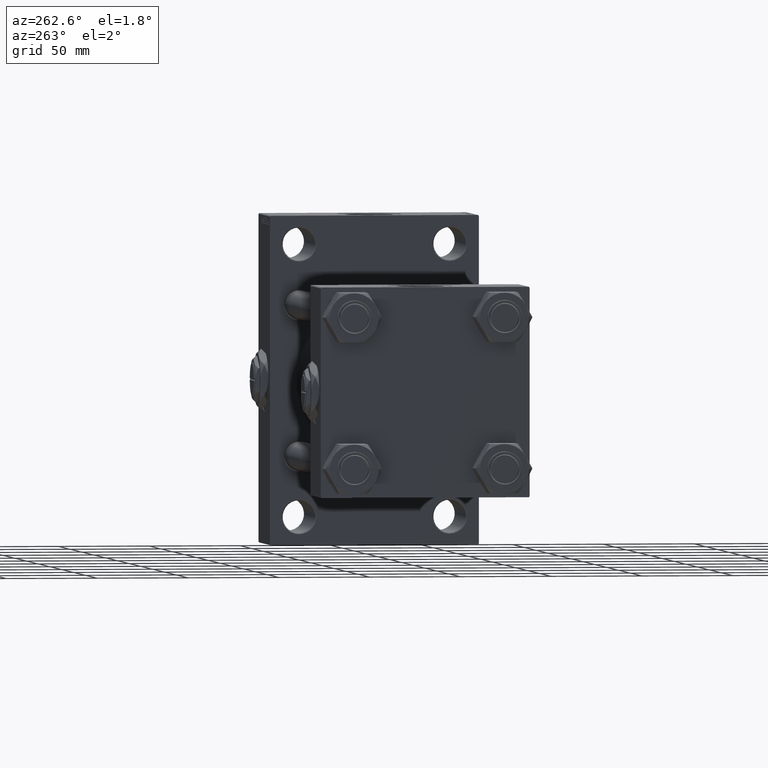
[diagram: clean part render]
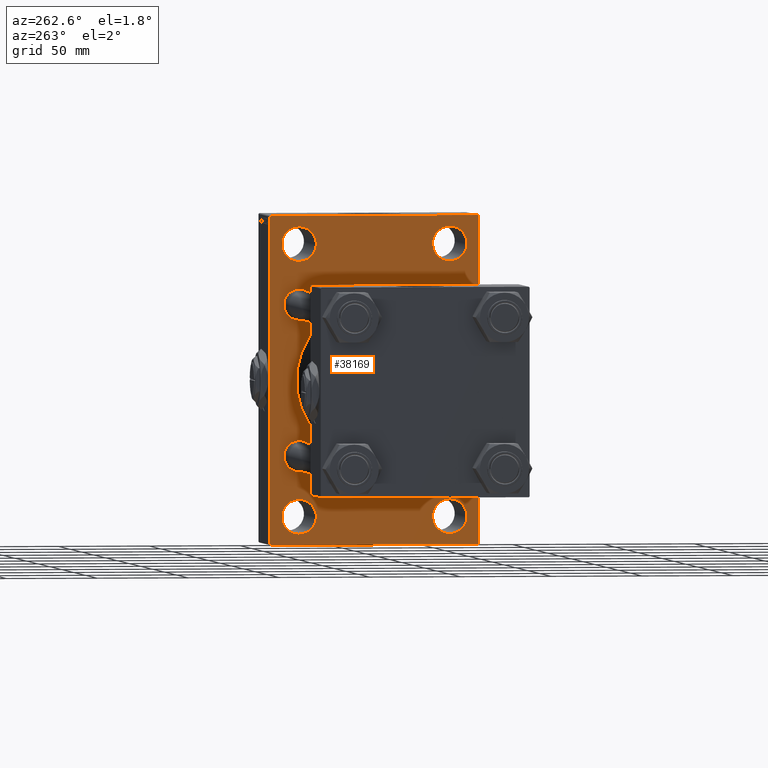
[diagram: same view with one face highlighted and labeled with its STEP entity id]
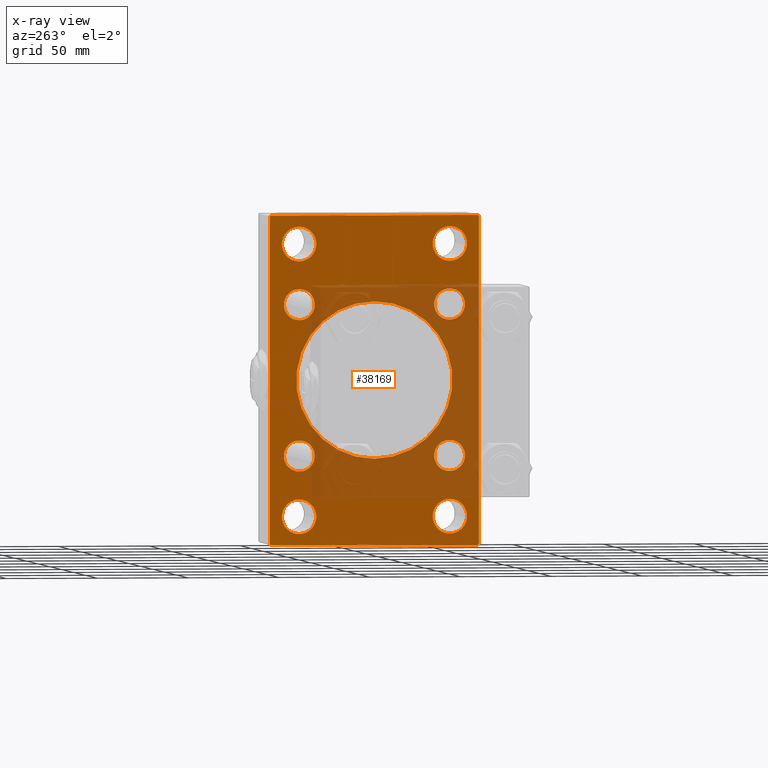
[diagram: x-ray of the same camera — body ghosted, the highlighted face saturated]
A machine part, auxiliary view. The second image highlights one B-rep face of the part: STEP entity #38169.
The next image is the same camera in x-ray: the body ghosted, the highlighted face saturated — about 37% of this face is hidden behind the body in this view.
In plain terms, the highlighted planar face has unit normal (-1, 0, 0).
Its self-contained STEP definition (entity closure, byte-faithful):
#252 = EDGE_CURVE ( 'NONE', #344, #13817, #27634, .T. ) ;
#344 = VERTEX_POINT ( 'NONE', #37835 ) ;
#804 = DIRECTION ( 'NONE',  ( 0.000000000000000000, 0.000000000000000000, 1.000000000000000000 ) ) ;
#981 = DIRECTION ( 'NONE',  ( 0.000000000000000000, -1.000000000000000000, -1.206764157201257045E-16 ) ) ;
#1043 = FACE_BOUND ( 'NONE', #28499, .T. ) ;
#1195 = ORIENTED_EDGE ( 'NONE', *, *, #24516, .T. ) ;
#1393 = AXIS2_PLACEMENT_3D ( 'NONE', #35901, #47982, #43218 ) ;
#1520 = EDGE_CURVE ( 'NONE', #24463, #35266, #39720, .T. ) ;
#1678 = EDGE_CURVE ( 'NONE', #34278, #28096, #45360, .T. ) ;
#1801 = VERTEX_POINT ( 'NONE', #38645 ) ;
#2208 = CIRCLE ( 'NONE', #1393, 9.499999999999980460 ) ;
#2738 = EDGE_LOOP ( 'NONE', ( #7486, #29681 ) ) ;
#2803 = AXIS2_PLACEMENT_3D ( 'NONE', #28324, #46966, #47465 ) ;
#3040 = VERTEX_POINT ( 'NONE', #5344 ) ;
#3608 = AXIS2_PLACEMENT_3D ( 'NONE', #35010, #46347, #11858 ) ;
#3806 = CIRCLE ( 'NONE', #35971, 8.500000000000007105 ) ;
#3875 = CIRCLE ( 'NONE', #19935, 9.499999999999980460 ) ;
#3904 = CARTESIAN_POINT ( 'NONE',  ( 215.0000000000000284, -41.49999999999999289, 83.99999999999998579 ) ) ;
#3926 = VERTEX_POINT ( 'NONE', #28172 ) ;
#4108 = ORIENTED_EDGE ( 'NONE', *, *, #46200, .T. ) ;
#4416 = VECTOR ( 'NONE', #29407, 1000.000000000000000 ) ;
#4475 = AXIS2_PLACEMENT_3D ( 'NONE', #37730, #33466, #22620 ) ;
#4561 = AXIS2_PLACEMENT_3D ( 'NONE', #15664, #49686, #804 ) ;
#4771 = LINE ( 'NONE', #5009, #18200 ) ;
#4974 = CARTESIAN_POINT ( 'NONE',  ( 215.0000000000000284, 73.49999999999994316, 73.49999999999994316 ) ) ;
#5009 = CARTESIAN_POINT ( 'NONE',  ( 215.0000000000000284, 57.49999999999997868, -90.00000000000000000 ) ) ;
#5176 = VERTEX_POINT ( 'NONE', #45951 ) ;
#5344 = CARTESIAN_POINT ( 'NONE',  ( 215.0000000000000284, 56.99999999999997868, -90.00000000000000000 ) ) ;
#5455 = CARTESIAN_POINT ( 'NONE',  ( 215.0000000000000284, 41.50000000000000711, 74.50000000000001421 ) ) ;
#6467 = CARTESIAN_POINT ( 'NONE',  ( 215.0000000000000284, 57.49999999999997158, 89.99999999999998579 ) ) ;
#7184 = DIRECTION ( 'NONE',  ( 0.000000000000000000, 0.000000000000000000, 1.000000000000000000 ) ) ;
#7486 = ORIENTED_EDGE ( 'NONE', *, *, #27283, .T. ) ;
#8182 = DIRECTION ( 'NONE',  ( 0.000000000000000000, 0.000000000000000000, 1.000000000000000000 ) ) ;
#8187 = DIRECTION ( 'NONE',  ( 1.000000000000000000, -0.000000000000000000, 0.000000000000000000 ) ) ;
#8198 = EDGE_CURVE ( 'NONE', #28650, #30996, #28591, .T. ) ;
#8362 = FACE_BOUND ( 'NONE', #29411, .T. ) ;
#8535 = AXIS2_PLACEMENT_3D ( 'NONE', #43696, #9208, #12492 ) ;
#8661 = CARTESIAN_POINT ( 'NONE',  ( 215.0000000000000284, 41.34999999999999432, -41.35000000000000142 ) ) ;
#8765 = DIRECTION ( 'NONE',  ( 0.000000000000000000, 0.7071067811865474617, -0.7071067811865474617 ) ) ;
#9205 = CARTESIAN_POINT ( 'NONE',  ( 215.0000000000000284, -57.50000000000002132, 89.49999999999997158 ) ) ;
#9208 = DIRECTION ( 'NONE',  ( 1.000000000000000000, -0.000000000000000000, 0.000000000000000000 ) ) ;
#9258 = ORIENTED_EDGE ( 'NONE', *, *, #34669, .T. ) ;
#9299 = VERTEX_POINT ( 'NONE', #37678 ) ;
#9437 = ORIENTED_EDGE ( 'NONE', *, *, #28914, .F. ) ;
#9520 = EDGE_CURVE ( 'NONE', #33704, #22041, #24632, .T. ) ;
#9899 = AXIS2_PLACEMENT_3D ( 'NONE', #38657, #8187, #34890 ) ;
#10342 = CARTESIAN_POINT ( 'NONE',  ( 215.0000000000000284, -41.49999999999999289, -83.99999999999995737 ) ) ;
#10472 = DIRECTION ( 'NONE',  ( 1.000000000000000000, -0.000000000000000000, 0.000000000000000000 ) ) ;
#10528 = LINE ( 'NONE', #14034, #4416 ) ;
#10617 = ORIENTED_EDGE ( 'NONE', *, *, #34603, .T. ) ;
#10811 = DIRECTION ( 'NONE',  ( 1.000000000000000000, -0.000000000000000000, 0.000000000000000000 ) ) ;
#11223 = CARTESIAN_POINT ( 'NONE',  ( 215.0000000000000284, -2.602085213965210642E-15, 0.000000000000000000 ) ) ;
#11521 = CARTESIAN_POINT ( 'NONE',  ( 215.0000000000000284, 41.34999999999999432, -32.84999999999999432 ) ) ;
#11560 = AXIS2_PLACEMENT_3D ( 'NONE', #42686, #12466, #8182 ) ;
#11655 = VECTOR ( 'NONE', #45744, 1000.000000000000000 ) ;
#11681 = VERTEX_POINT ( 'NONE', #11965 ) ;
#11695 = EDGE_CURVE ( 'NONE', #9299, #47585, #31149, .T. ) ;
#11852 = DIRECTION ( 'NONE',  ( 0.000000000000000000, 0.000000000000000000, 1.000000000000000000 ) ) ;
#11858 = DIRECTION ( 'NONE',  ( 0.000000000000000000, 0.000000000000000000, -1.000000000000000000 ) ) ;
#11914 = EDGE_LOOP ( 'NONE', ( #42057, #37471 ) ) ;
#11929 = EDGE_CURVE ( 'NONE', #35438, #48436, #12635, .T. ) ;
#11965 = CARTESIAN_POINT ( 'NONE',  ( 215.0000000000000284, 57.49999999999997868, -89.49999999999995737 ) ) ;
#12102 = VECTOR ( 'NONE', #13013, 999.9999999999998863 ) ;
#12376 = DIRECTION ( 'NONE',  ( 1.000000000000000000, -0.000000000000000000, 0.000000000000000000 ) ) ;
#12429 = DIRECTION ( 'NONE',  ( 1.000000000000000000, -0.000000000000000000, 0.000000000000000000 ) ) ;
#12466 = DIRECTION ( 'NONE',  ( 1.000000000000000000, -0.000000000000000000, 0.000000000000000000 ) ) ;
#12490 = CIRCLE ( 'NONE', #3608, 43.00000000000000000 ) ;
#12492 = DIRECTION ( 'NONE',  ( 0.000000000000000000, 0.000000000000000000, 1.000000000000000000 ) ) ;
#12541 = DIRECTION ( 'NONE',  ( 0.000000000000000000, 0.000000000000000000, 1.000000000000000000 ) ) ;
#12635 = CIRCLE ( 'NONE', #48820, 8.500000000000007105 ) ;
#12830 = CARTESIAN_POINT ( 'NONE',  ( 215.0000000000000284, -41.34999999999998721, -49.85000000000002274 ) ) ;
#12895 = ORIENTED_EDGE ( 'NONE', *, *, #40092, .T. ) ;
#12958 = VERTEX_POINT ( 'NONE', #25922 ) ;
#13013 = DIRECTION ( 'NONE',  ( -0.000000000000000000, 0.7071067811865525687, 0.7071067811865425767 ) ) ;
#13267 = AXIS2_PLACEMENT_3D ( 'NONE', #14199, #29567, #15932 ) ;
#13758 = EDGE_CURVE ( 'NONE', #12958, #1801, #45451, .T. ) ;
#13817 = VERTEX_POINT ( 'NONE', #3904 ) ;
#14034 = CARTESIAN_POINT ( 'NONE',  ( 215.0000000000000284, 57.49999999999997158, 89.99999999999998579 ) ) ;
#14199 = CARTESIAN_POINT ( 'NONE',  ( 215.0000000000000284, -41.49999999999999289, -74.49999999999998579 ) ) ;
#14279 = DIRECTION ( 'NONE',  ( 1.000000000000000000, -0.000000000000000000, 0.000000000000000000 ) ) ;
#14314 = VECTOR ( 'NONE', #8765, 1000.000000000000114 ) ;
#14751 = AXIS2_PLACEMENT_3D ( 'NONE', #33505, #29966, #11852 ) ;
#14757 = CARTESIAN_POINT ( 'NONE',  ( 215.0000000000000284, -57.50000000000002132, 89.99999999999997158 ) ) ;
#14944 = CARTESIAN_POINT ( 'NONE',  ( 215.0000000000000284, -41.34999999999998721, 32.85000000000000142 ) ) ;
#14977 = CIRCLE ( 'NONE', #4561, 8.500000000000007105 ) ;
#15045 = DIRECTION ( 'NONE',  ( 0.000000000000000000, 0.000000000000000000, 1.000000000000000000 ) ) ;
#15259 = ORIENTED_EDGE ( 'NONE', *, *, #13758, .T. ) ;
#15664 = CARTESIAN_POINT ( 'NONE',  ( 215.0000000000000284, -41.34999999999998721, -41.35000000000000853 ) ) ;
#15932 = DIRECTION ( 'NONE',  ( 0.000000000000000000, 0.000000000000000000, 1.000000000000000000 ) ) ;
#16180 = CARTESIAN_POINT ( 'NONE',  ( 215.0000000000000284, 41.50000000000000711, -65.00000000000001421 ) ) ;
#16186 = DIRECTION ( 'NONE',  ( 0.000000000000000000, 0.000000000000000000, 1.000000000000000000 ) ) ;
#17103 = CIRCLE ( 'NONE', #9899, 9.499999999999980460 ) ;
#17104 = CARTESIAN_POINT ( 'NONE',  ( 215.0000000000000284, 41.34999999999999432, 49.85000000000001563 ) ) ;
#17788 = LINE ( 'NONE', #6467, #33523 ) ;
#17992 = CARTESIAN_POINT ( 'NONE',  ( 215.0000000000000284, -73.49999999999924682, -73.50000000000129319 ) ) ;
#18081 = ORIENTED_EDGE ( 'NONE', *, *, #11929, .T. ) ;
#18114 = CIRCLE ( 'NONE', #4475, 9.499999999999980460 ) ;
#18200 = VECTOR ( 'NONE', #981, 1000.000000000000000 ) ;
#18780 = VERTEX_POINT ( 'NONE', #16180 ) ;
#18880 = ORIENTED_EDGE ( 'NONE', *, *, #39821, .T. ) ;
#19196 = FACE_BOUND ( 'NONE', #2738, .T. ) ;
#19459 = ORIENTED_EDGE ( 'NONE', *, *, #22874, .F. ) ;
#19583 = CARTESIAN_POINT ( 'NONE',  ( 215.0000000000000284, -41.49999999999999289, 74.50000000000001421 ) ) ;
#19886 = AXIS2_PLACEMENT_3D ( 'NONE', #11223, #42436, #45453 ) ;
#19935 = AXIS2_PLACEMENT_3D ( 'NONE', #19583, #20089, #12541 ) ;
#19942 = FACE_BOUND ( 'NONE', #31188, .T. ) ;
#20089 = DIRECTION ( 'NONE',  ( 1.000000000000000000, -0.000000000000000000, 0.000000000000000000 ) ) ;
#20178 = DIRECTION ( 'NONE',  ( -0.000000000000000000, 0.000000000000000000, 1.000000000000000000 ) ) ;
#20986 = EDGE_LOOP ( 'NONE', ( #10617, #25725 ) ) ;
#21564 = EDGE_CURVE ( 'NONE', #44948, #3926, #39703, .T. ) ;
#21807 = LINE ( 'NONE', #14757, #11655 ) ;
#21817 = DIRECTION ( 'NONE',  ( 0.000000000000000000, 0.000000000000000000, 1.000000000000000000 ) ) ;
#22041 = VERTEX_POINT ( 'NONE', #35443 ) ;
#22114 = VECTOR ( 'NONE', #29528, 1000.000000000000000 ) ;
#22323 = DIRECTION ( 'NONE',  ( 0.000000000000000000, -1.000000000000000000, -1.206764157201257291E-16 ) ) ;
#22452 = CARTESIAN_POINT ( 'NONE',  ( 215.0000000000000284, 73.49999999999920419, -73.50000000000125056 ) ) ;
#22620 = DIRECTION ( 'NONE',  ( 0.000000000000000000, 0.000000000000000000, 1.000000000000000000 ) ) ;
#22759 = CARTESIAN_POINT ( 'NONE',  ( 215.0000000000000284, 56.99999999999992184, 89.99999999999998579 ) ) ;
#22874 = EDGE_CURVE ( 'NONE', #46720, #1801, #21807, .T. ) ;
#23223 = FACE_BOUND ( 'NONE', #49183, .T. ) ;
#23656 = AXIS2_PLACEMENT_3D ( 'NONE', #5455, #10472, #7184 ) ;
#23713 = PLANE ( 'NONE',  #35399 ) ;
#23776 = CARTESIAN_POINT ( 'NONE',  ( 215.0000000000000284, 41.50000000000000711, -83.99999999999997158 ) ) ;
#24074 = EDGE_CURVE ( 'NONE', #11681, #3040, #48914, .T. ) ;
#24463 = VERTEX_POINT ( 'NONE', #33425 ) ;
#24516 = EDGE_CURVE ( 'NONE', #5176, #11681, #10528, .T. ) ;
#24528 = CIRCLE ( 'NONE', #2803, 9.499999999999980460 ) ;
#24632 = CIRCLE ( 'NONE', #8535, 8.500000000000007105 ) ;
#24882 = CARTESIAN_POINT ( 'NONE',  ( 215.0000000000000284, -57.00000000000001421, 89.99999999999997158 ) ) ;
#25725 = ORIENTED_EDGE ( 'NONE', *, *, #252, .T. ) ;
#25922 = CARTESIAN_POINT ( 'NONE',  ( 215.0000000000000284, -57.00000000000007816, -90.00000000000001421 ) ) ;
#26493 = CARTESIAN_POINT ( 'NONE',  ( 215.0000000000000284, -41.49999999999999289, -65.00000000000000000 ) ) ;
#27283 = EDGE_CURVE ( 'NONE', #3926, #44948, #14977, .T. ) ;
#27634 = CIRCLE ( 'NONE', #11560, 9.499999999999980460 ) ;
#27904 = LINE ( 'NONE', #32160, #12102 ) ;
#28096 = VERTEX_POINT ( 'NONE', #39127 ) ;
#28172 = CARTESIAN_POINT ( 'NONE',  ( 215.0000000000000284, -41.34999999999998721, -32.85000000000000142 ) ) ;
#28324 = CARTESIAN_POINT ( 'NONE',  ( 215.0000000000000284, 41.50000000000000711, -74.50000000000000000 ) ) ;
#28499 = EDGE_LOOP ( 'NONE', ( #49346, #12895 ) ) ;
#28591 = CIRCLE ( 'NONE', #13267, 9.499999999999980460 ) ;
#28650 = VERTEX_POINT ( 'NONE', #26493 ) ;
#28914 = EDGE_CURVE ( 'NONE', #29449, #42736, #17788, .T. ) ;
#29200 = EDGE_CURVE ( 'NONE', #28096, #34278, #2208, .T. ) ;
#29407 = DIRECTION ( 'NONE',  ( 0.000000000000000000, 3.854941057726238467E-17, -1.000000000000000000 ) ) ;
#29411 = EDGE_LOOP ( 'NONE', ( #35875, #4108 ) ) ;
#29449 = VERTEX_POINT ( 'NONE', #22759 ) ;
#29528 = DIRECTION ( 'NONE',  ( -0.000000000000000000, -0.7071067811865573427, -0.7071067811865378028 ) ) ;
#29567 = DIRECTION ( 'NONE',  ( 1.000000000000000000, -0.000000000000000000, 0.000000000000000000 ) ) ;
#29681 = ORIENTED_EDGE ( 'NONE', *, *, #21564, .T. ) ;
#29913 = EDGE_CURVE ( 'NONE', #22041, #33704, #40766, .T. ) ;
#29966 = DIRECTION ( 'NONE',  ( 1.000000000000000000, -0.000000000000000000, 0.000000000000000000 ) ) ;
#30193 = CARTESIAN_POINT ( 'NONE',  ( 215.0000000000000284, -41.34999999999998721, 41.35000000000000853 ) ) ;
#30780 = FACE_BOUND ( 'NONE', #43141, .T. ) ;
#30996 = VERTEX_POINT ( 'NONE', #10342 ) ;
#31036 = EDGE_CURVE ( 'NONE', #3040, #12958, #4771, .T. ) ;
#31149 = CIRCLE ( 'NONE', #19886, 43.00000000000000000 ) ;
#31188 = EDGE_LOOP ( 'NONE', ( #47149, #40747 ) ) ;
#31285 = FACE_BOUND ( 'NONE', #11914, .T. ) ;
#31512 = DIRECTION ( 'NONE',  ( 0.000000000000000000, 0.000000000000000000, 1.000000000000000000 ) ) ;
#31677 = LINE ( 'NONE', #4974, #14314 ) ;
#32160 = CARTESIAN_POINT ( 'NONE',  ( 215.0000000000000284, -73.49999999999958789, 73.50000000000062528 ) ) ;
#32929 = EDGE_CURVE ( 'NONE', #35266, #24463, #3806, .T. ) ;
#33425 = CARTESIAN_POINT ( 'NONE',  ( 215.0000000000000284, -41.34999999999998721, 49.85000000000002274 ) ) ;
#33466 = DIRECTION ( 'NONE',  ( 1.000000000000000000, -0.000000000000000000, 0.000000000000000000 ) ) ;
#33505 = CARTESIAN_POINT ( 'NONE',  ( 215.0000000000000284, -41.34999999999998721, -41.35000000000000853 ) ) ;
#33523 = VECTOR ( 'NONE', #22323, 1000.000000000000000 ) ;
#33667 = CARTESIAN_POINT ( 'NONE',  ( 215.0000000000000284, 41.34999999999999432, -41.35000000000000142 ) ) ;
#33704 = VERTEX_POINT ( 'NONE', #17104 ) ;
#34180 = DIRECTION ( 'NONE',  ( 1.000000000000000000, -0.000000000000000000, 0.000000000000000000 ) ) ;
#34260 = ORIENTED_EDGE ( 'NONE', *, *, #24074, .T. ) ;
#34278 = VERTEX_POINT ( 'NONE', #38541 ) ;
#34570 = DIRECTION ( 'NONE',  ( -1.000000000000000000, 0.000000000000000000, -0.000000000000000000 ) ) ;
#34603 = EDGE_CURVE ( 'NONE', #13817, #344, #3875, .T. ) ;
#34669 = EDGE_CURVE ( 'NONE', #29449, #5176, #31677, .T. ) ;
#34890 = DIRECTION ( 'NONE',  ( 0.000000000000000000, 0.000000000000000000, 1.000000000000000000 ) ) ;
#35011 = ORIENTED_EDGE ( 'NONE', *, *, #32929, .T. ) ;
#35010 = CARTESIAN_POINT ( 'NONE',  ( 215.0000000000000284, -2.602085213965210642E-15, 0.000000000000000000 ) ) ;
#35266 = VERTEX_POINT ( 'NONE', #14944 ) ;
#35306 = FACE_OUTER_BOUND ( 'NONE', #37725, .T. ) ;
#35399 = AXIS2_PLACEMENT_3D ( 'NONE', #39074, #34570, #20178 ) ;
#35438 = VERTEX_POINT ( 'NONE', #44546 ) ;
#35443 = CARTESIAN_POINT ( 'NONE',  ( 215.0000000000000284, 41.34999999999999432, 32.84999999999999432 ) ) ;
#35559 = ORIENTED_EDGE ( 'NONE', *, *, #47383, .T. ) ;
#35638 = ORIENTED_EDGE ( 'NONE', *, *, #31036, .T. ) ;
#35704 = AXIS2_PLACEMENT_3D ( 'NONE', #37184, #34180, #15045 ) ;
#35875 = ORIENTED_EDGE ( 'NONE', *, *, #48939, .T. ) ;
#35901 = CARTESIAN_POINT ( 'NONE',  ( 215.0000000000000284, 41.50000000000000711, 74.50000000000001421 ) ) ;
#35971 = AXIS2_PLACEMENT_3D ( 'NONE', #30193, #10811, #41763 ) ;
#36625 = CARTESIAN_POINT ( 'NONE',  ( 215.0000000000000284, -2.602085213965210642E-15, 43.00000000000000000 ) ) ;
#37184 = CARTESIAN_POINT ( 'NONE',  ( 215.0000000000000284, -41.34999999999998721, 41.35000000000000853 ) ) ;
#37471 = ORIENTED_EDGE ( 'NONE', *, *, #29913, .T. ) ;
#37678 = CARTESIAN_POINT ( 'NONE',  ( 215.0000000000000284, 2.663896022368408223E-15, -43.00000000000000000 ) ) ;
#37725 = EDGE_LOOP ( 'NONE', ( #35638, #15259, #19459, #18880, #9437, #9258, #1195, #34260 ) ) ;
#37730 = CARTESIAN_POINT ( 'NONE',  ( 215.0000000000000284, 41.50000000000000711, -74.50000000000000000 ) ) ;
#37835 = CARTESIAN_POINT ( 'NONE',  ( 215.0000000000000284, -41.49999999999999289, 65.00000000000002842 ) ) ;
#38067 = FACE_BOUND ( 'NONE', #20986, .T. ) ;
#38169 = ADVANCED_FACE ( 'NONE', ( #38067, #1043, #8362, #19942, #42852, #31285, #23223, #19196, #30780, #35306 ), #23713, .T. ) ;
#38541 = CARTESIAN_POINT ( 'NONE',  ( 215.0000000000000284, 41.50000000000000711, 83.99999999999998579 ) ) ;
#38645 = CARTESIAN_POINT ( 'NONE',  ( 215.0000000000000284, -57.50000000000002132, -89.50000000000002842 ) ) ;
#38657 = CARTESIAN_POINT ( 'NONE',  ( 215.0000000000000284, -41.49999999999999289, -74.49999999999998579 ) ) ;
#39074 = CARTESIAN_POINT ( 'NONE',  ( 215.0000000000000284, 0.000000000000000000, 0.000000000000000000 ) ) ;
#39127 = CARTESIAN_POINT ( 'NONE',  ( 215.0000000000000284, 41.50000000000000711, 65.00000000000002842 ) ) ;
#39703 = CIRCLE ( 'NONE', #14751, 8.500000000000007105 ) ;
#39720 = CIRCLE ( 'NONE', #35704, 8.500000000000007105 ) ;
#39821 = EDGE_CURVE ( 'NONE', #46720, #42736, #27904, .T. ) ;
#40092 = EDGE_CURVE ( 'NONE', #30996, #28650, #17103, .T. ) ;
#40747 = ORIENTED_EDGE ( 'NONE', *, *, #29200, .T. ) ;
#40766 = CIRCLE ( 'NONE', #44809, 8.500000000000007105 ) ;
#41763 = DIRECTION ( 'NONE',  ( 0.000000000000000000, 0.000000000000000000, 1.000000000000000000 ) ) ;
#41917 = DIRECTION ( 'NONE',  ( 0.000000000000000000, -0.7071067811865574537, 0.7071067811865376918 ) ) ;
#42057 = ORIENTED_EDGE ( 'NONE', *, *, #9520, .T. ) ;
#42436 = DIRECTION ( 'NONE',  ( 1.000000000000000000, 0.000000000000000000, 0.000000000000000000 ) ) ;
#42464 = ORIENTED_EDGE ( 'NONE', *, *, #48652, .T. ) ;
#42686 = CARTESIAN_POINT ( 'NONE',  ( 215.0000000000000284, -41.49999999999999289, 74.50000000000001421 ) ) ;
#42736 = VERTEX_POINT ( 'NONE', #24882 ) ;
#42852 = FACE_BOUND ( 'NONE', #44438, .T. ) ;
#43141 = EDGE_LOOP ( 'NONE', ( #42464, #43741 ) ) ;
#43218 = DIRECTION ( 'NONE',  ( 0.000000000000000000, 0.000000000000000000, 1.000000000000000000 ) ) ;
#43401 = VERTEX_POINT ( 'NONE', #23776 ) ;
#43696 = CARTESIAN_POINT ( 'NONE',  ( 215.0000000000000284, 41.34999999999999432, 41.35000000000000142 ) ) ;
#43741 = ORIENTED_EDGE ( 'NONE', *, *, #11695, .T. ) ;
#43832 = CARTESIAN_POINT ( 'NONE',  ( 215.0000000000000284, 41.34999999999999432, 41.35000000000000142 ) ) ;
#44438 = EDGE_LOOP ( 'NONE', ( #44611, #35011 ) ) ;
#44546 = CARTESIAN_POINT ( 'NONE',  ( 215.0000000000000284, 41.34999999999999432, -49.85000000000001563 ) ) ;
#44611 = ORIENTED_EDGE ( 'NONE', *, *, #1520, .T. ) ;
#44809 = AXIS2_PLACEMENT_3D ( 'NONE', #43832, #12376, #31512 ) ;
#44948 = VERTEX_POINT ( 'NONE', #12830 ) ;
#45360 = CIRCLE ( 'NONE', #23656, 9.499999999999980460 ) ;
#45451 = LINE ( 'NONE', #17992, #46011 ) ;
#45453 = DIRECTION ( 'NONE',  ( 0.000000000000000000, 0.000000000000000000, -1.000000000000000000 ) ) ;
#45744 = DIRECTION ( 'NONE',  ( 0.000000000000000000, 0.000000000000000000, -1.000000000000000000 ) ) ;
#45951 = CARTESIAN_POINT ( 'NONE',  ( 215.0000000000000284, 57.49999999999997158, 89.49999999999992895 ) ) ;
#46011 = VECTOR ( 'NONE', #41917, 999.9999999999998863 ) ;
#46200 = EDGE_CURVE ( 'NONE', #43401, #18780, #18114, .T. ) ;
#46347 = DIRECTION ( 'NONE',  ( 1.000000000000000000, 0.000000000000000000, 0.000000000000000000 ) ) ;
#46720 = VERTEX_POINT ( 'NONE', #9205 ) ;
#46966 = DIRECTION ( 'NONE',  ( 1.000000000000000000, -0.000000000000000000, 0.000000000000000000 ) ) ;
#47149 = ORIENTED_EDGE ( 'NONE', *, *, #1678, .T. ) ;
#47151 = AXIS2_PLACEMENT_3D ( 'NONE', #33667, #14279, #21817 ) ;
#47383 = EDGE_CURVE ( 'NONE', #48436, #35438, #49439, .T. ) ;
#47465 = DIRECTION ( 'NONE',  ( 0.000000000000000000, 0.000000000000000000, 1.000000000000000000 ) ) ;
#47585 = VERTEX_POINT ( 'NONE', #36625 ) ;
#47982 = DIRECTION ( 'NONE',  ( 1.000000000000000000, -0.000000000000000000, 0.000000000000000000 ) ) ;
#48436 = VERTEX_POINT ( 'NONE', #11521 ) ;
#48652 = EDGE_CURVE ( 'NONE', #47585, #9299, #12490, .T. ) ;
#48820 = AXIS2_PLACEMENT_3D ( 'NONE', #8661, #12429, #16186 ) ;
#48914 = LINE ( 'NONE', #22452, #22114 ) ;
#48939 = EDGE_CURVE ( 'NONE', #18780, #43401, #24528, .T. ) ;
#49183 = EDGE_LOOP ( 'NONE', ( #35559, #18081 ) ) ;
#49346 = ORIENTED_EDGE ( 'NONE', *, *, #8198, .T. ) ;
#49439 = CIRCLE ( 'NONE', #47151, 8.500000000000007105 ) ;
#49686 = DIRECTION ( 'NONE',  ( 1.000000000000000000, -0.000000000000000000, 0.000000000000000000 ) ) ;